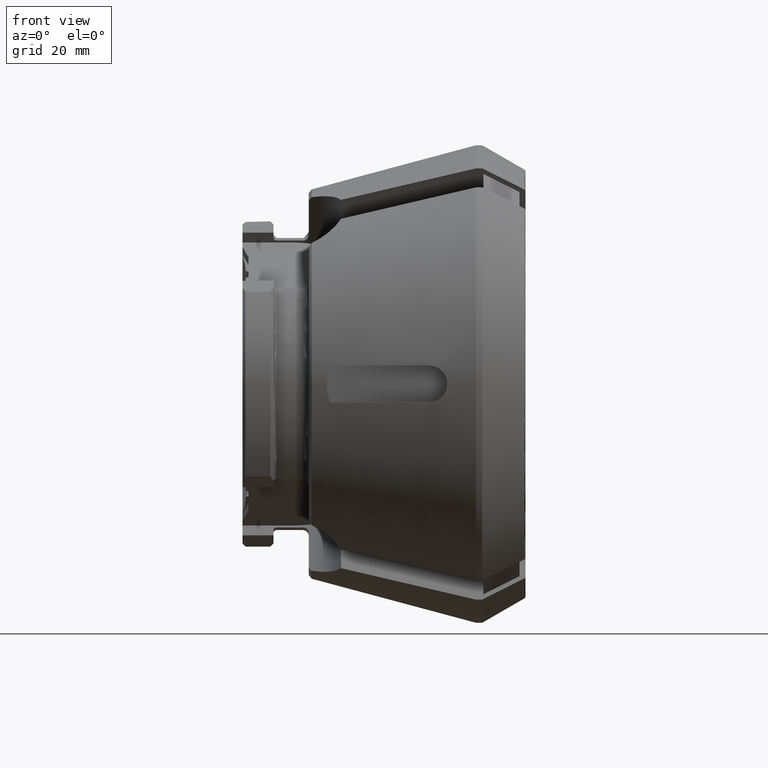
[diagram: clean part render]
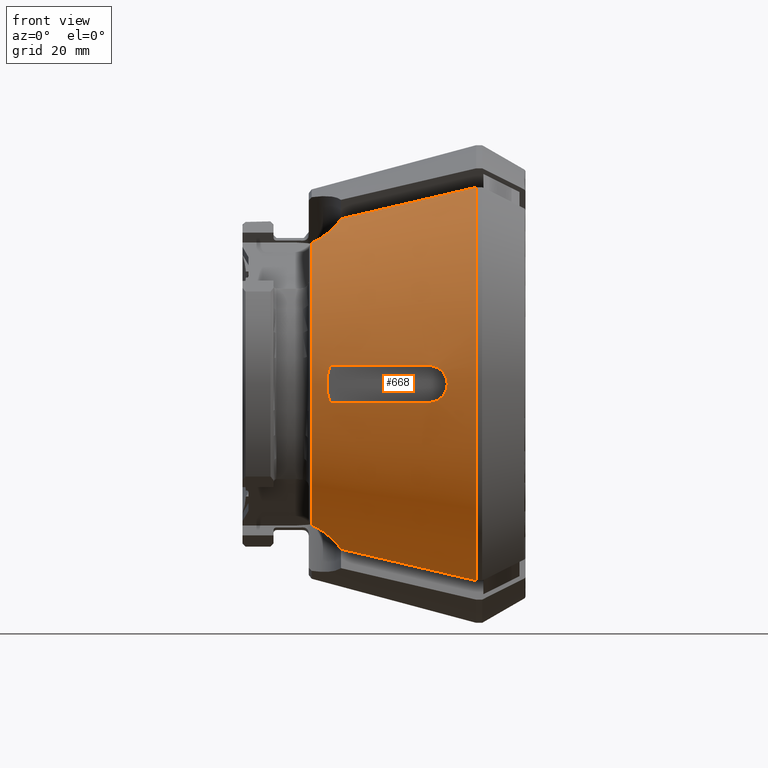
[diagram: same view with one face highlighted and labeled with its STEP entity id]
A machine part, front view. The second image highlights one B-rep face of the part: STEP entity #668.
In plain terms, the highlighted conical surface has half-angle 15 deg.
Its self-contained STEP definition (entity closure, byte-faithful):
#26 = CARTESIAN_POINT ( 'NONE',  ( -30.64625945521600100, -19.47183894521694100, -27.42621436991474600 ) ) ;
#67 = CARTESIAN_POINT ( 'NONE',  ( -30.76109235492472000, -19.67594187864342500, -27.24357143298756200 ) ) ;
#107 = CARTESIAN_POINT ( 'NONE',  ( -31.33200643643366200, -20.41502746269239000, -26.50108288042860800 ) ) ;
#207 = CARTESIAN_POINT ( 'NONE',  ( -30.88996370297099900, -19.87027436989981100, -27.05920589052581000 ) ) ;
#668 = ADVANCED_FACE ( 'NONE', ( #18580, #18807 ), #18393, .T. ) ;
#671 = CARTESIAN_POINT ( 'NONE',  ( -32.20732042301361300, -21.18007825766414600, -25.59208816440798300 ) ) ;
#730 = CARTESIAN_POINT ( 'NONE',  ( -31.17553888721092600, -20.24014629339060500, -26.68769743701243200 ) ) ;
#850 = CARTESIAN_POINT ( 'NONE',  ( -32.49323519577391300, -33.00000000000000000, 3.049999999999994000 ) ) ;
#861 = CARTESIAN_POINT ( 'NONE',  ( -31.83149369194227800, -20.90166397095048700, -25.95070031254957100 ) ) ;
#867 = CARTESIAN_POINT ( 'NONE',  ( -27.01234194574514500, -34.47486015279689300, 3.049999999999998500 ) ) ;
#908 = CARTESIAN_POINT ( 'NONE',  ( -21.53124165977687100, -35.94895027717363000, 3.050000000000000300 ) ) ;
#915 = CARTESIAN_POINT ( 'NONE',  ( -32.83398794700850900, -21.53532463159100300, -25.07050002879428900 ) ) ;
#1024 = CARTESIAN_POINT ( 'NONE',  ( -16.04999999999999700, -37.42251440520814000, 3.050000000000002500 ) ) ;
#1250 = CARTESIAN_POINT ( 'NONE',  ( -33.05483069336841600, -21.64374991605524600, -24.89843966363966700 ) ) ;
#1271 = CARTESIAN_POINT ( 'NONE',  ( -33.51005086725347600, -21.83615024832199600, -24.56692123775297900 ) ) ;
#1334 = CARTESIAN_POINT ( 'NONE',  ( -35.51703708685545300, -22.29768903052275100, 23.41087885680820000 ) ) ;
#1382 = CIRCLE ( 'NONE', #8744, 32.33042197296602200 ) ;
#1472 = CARTESIAN_POINT ( 'NONE',  ( -34.46843826279770400, -22.13945020353289600, -23.94674391474965000 ) ) ;
#1544 = CARTESIAN_POINT ( 'NONE',  ( -33.74454065312333700, -21.92041774440670900, -24.40720594919255900 ) ) ;
#1772 = CARTESIAN_POINT ( 'NONE',  ( -34.97801738506835500, -22.24087557305431800, -23.66444850089115400 ) ) ;
#1795 = CARTESIAN_POINT ( 'NONE',  ( -35.51703708685546000, -22.29768903052242700, -23.41087885680850900 ) ) ;
#2266 = B_SPLINE_CURVE_WITH_KNOTS ( 'NONE', 3,
 ( #12337, #11798, #11771, #11706, #11644, #11620, #11574, #11546, #11525, #11473 ),
 .UNSPECIFIED., .F., .F.,
 ( 4, 2, 2, 2, 4 ),
 ( 0.0009050040789083472500, 0.002674022955238913900, 0.004443041831569480800, 0.006212060707900046900, 0.007981079584230613800 ),
 .UNSPECIFIED. ) ;
#2285 = VERTEX_POINT ( 'NONE', #2609 ) ;
#2609 = CARTESIAN_POINT ( 'NONE',  ( -8.199999999999999300, -22.49031794029505700, 32.65437335096850500 ) ) ;
#3034 = B_SPLINE_CURVE_WITH_KNOTS ( 'NONE', 3,
 ( #1795, #1772, #1472, #1544, #1271, #1250, #915, #671, #861, #107, #730, #207, #67, #26 ),
 .UNSPECIFIED., .F., .F.,
 ( 4, 2, 2, 2, 2, 2, 4 ),
 ( 2.189187173582420600E-007, 0.001770253548386370900, 0.002655270863220890100, 0.003540288178055408900, 0.005310322807724455200, 0.006195340122558985200, 0.007080357437393515300 ),
 .UNSPECIFIED. ) ;
#3128 = B_SPLINE_CURVE_WITH_KNOTS ( 'NONE', 3,
 ( #18006, #18008, #17942, #17910 ),
 .UNSPECIFIED., .F., .F.,
 ( 4, 4 ),
 ( 2.070992766696240800E-007, 0.02324411865749188100 ),
 .UNSPECIFIED. ) ;
#3474 = CARTESIAN_POINT ( 'NONE',  ( -35.51703708685546000, -22.29768903052242700, -23.41087885680850900 ) ) ;
#3753 = B_SPLINE_CURVE_WITH_KNOTS ( 'NONE', 3,
 ( #12659, #12749, #12637, #12598 ),
 .UNSPECIFIED., .F., .F.,
 ( 4, 4 ),
 ( 0.005044362154641272200, 0.02828827371285648500 ),
 .UNSPECIFIED. ) ;
#4324 = CARTESIAN_POINT ( 'NONE',  ( -32.49323519577391300, -33.00000000000000000, -3.049999999999996300 ) ) ;
#4708 = EDGE_CURVE ( 'NONE', #17121, #10559, #11332, .T. ) ;
#5554 = EDGE_CURVE ( 'NONE', #10559, #15789, #15757, .T. ) ;
#6241 = EDGE_CURVE ( 'NONE', #15789, #9437, #8699, .T. ) ;
#6262 = EDGE_LOOP ( 'NONE', ( #9290, #9307, #9347, #9512, #13984, #9616 ) ) ;
#6618 = EDGE_CURVE ( 'NONE', #9437, #17121, #16649, .T. ) ;
#7266 = CARTESIAN_POINT ( 'NONE',  ( -16.04999999999999700, -37.42251440520814000, 3.050000000000002500 ) ) ;
#7603 = AXIS2_PLACEMENT_3D ( 'NONE', #15889, #15768, #15745 ) ;
#8198 = CARTESIAN_POINT ( 'NONE',  ( -30.64625945521600100, -19.47183894521694100, -27.42621436991474600 ) ) ;
#8298 = VERTEX_POINT ( 'NONE', #15085 ) ;
#8696 = VERTEX_POINT ( 'NONE', #8198 ) ;
#8699 = B_SPLINE_CURVE_WITH_KNOTS ( 'NONE', 3,
 ( #10585, #9953, #9774, #9724 ),
 .UNSPECIFIED., .F., .F.,
 ( 4, 4 ),
 ( 0.04002864274520581700, 0.05705622527655449000 ),
 .UNSPECIFIED. ) ;
#8744 = AXIS2_PLACEMENT_3D ( 'NONE', #13056, #12916, #13030 ) ;
#8887 = CARTESIAN_POINT ( 'NONE',  ( -16.04999999999999700, -37.42251440520814000, -3.050000000000002500 ) ) ;
#8989 = ORIENTED_EDGE ( 'NONE', *, *, #6618, .F. ) ;
#9059 = ORIENTED_EDGE ( 'NONE', *, *, #6241, .F. ) ;
#9186 = CARTESIAN_POINT ( 'NONE',  ( -16.04999999999999700, -37.42251440520814000, 3.050000000000002500 ) ) ;
#9191 = CARTESIAN_POINT ( 'NONE',  ( -15.85109358714608900, -37.47598793785101600, 3.050000000000005200 ) ) ;
#9200 = ORIENTED_EDGE ( 'NONE', *, *, #5554, .F. ) ;
#9236 = ORIENTED_EDGE ( 'NONE', *, *, #4708, .F. ) ;
#9290 = ORIENTED_EDGE ( 'NONE', *, *, #11558, .T. ) ;
#9307 = ORIENTED_EDGE ( 'NONE', *, *, #11762, .T. ) ;
#9315 = CARTESIAN_POINT ( 'NONE',  ( -15.65239271994725300, -37.53102136154688400, 3.030342351384944800 ) ) ;
#9347 = ORIENTED_EDGE ( 'NONE', *, *, #11849, .F. ) ;
#9396 = CARTESIAN_POINT ( 'NONE',  ( -15.26705232704572000, -37.64065139925080700, 2.954328901318140400 ) ) ;
#9437 = VERTEX_POINT ( 'NONE', #8887 ) ;
#9442 = CARTESIAN_POINT ( 'NONE',  ( -15.07963138961547300, -37.69543923861198200, 2.898208608037044200 ) ) ;
#9512 = ORIENTED_EDGE ( 'NONE', *, *, #11940, .F. ) ;
#9616 = ORIENTED_EDGE ( 'NONE', *, *, #12144, .T. ) ;
#9618 = CARTESIAN_POINT ( 'NONE',  ( -14.71522576811290300, -37.80448016594621000, 2.749473790675196000 ) ) ;
#9657 = CARTESIAN_POINT ( 'NONE',  ( -14.53832366002721300, -37.85873947760851600, 2.656330101017973600 ) ) ;
#9724 = CARTESIAN_POINT ( 'NONE',  ( -16.04999999999999700, -37.42251440520814000, -3.050000000000002500 ) ) ;
#9726 = CARTESIAN_POINT ( 'NONE',  ( -14.20938297108239800, -37.96162140918173100, 2.439955719939647800 ) ) ;
#9774 = CARTESIAN_POINT ( 'NONE',  ( -21.53124165967197000, -35.94895027720183100, -3.050000000000000300 ) ) ;
#9953 = CARTESIAN_POINT ( 'NONE',  ( -27.01234193365310800, -34.47486015605075900, -3.049999999999998500 ) ) ;
#10001 = CARTESIAN_POINT ( 'NONE',  ( -14.05538264058918300, -38.01082707859096400, 2.316075510924844800 ) ) ;
#10046 = CARTESIAN_POINT ( 'NONE',  ( -32.49323519577391300, -33.00000000000000000, -3.049999999999996300 ) ) ;
#10096 = CARTESIAN_POINT ( 'NONE',  ( -13.76933796489214900, -38.10366450937871000, 2.035014708641306000 ) ) ;
#10207 = CARTESIAN_POINT ( 'NONE',  ( -32.83015037337770500, -33.00000000000000000, -2.069078677385886200 ) ) ;
#10223 = CARTESIAN_POINT ( 'NONE',  ( -13.64123051339744200, -38.14601435781387600, 1.881577435203425400 ) ) ;
#10241 = CARTESIAN_POINT ( 'NONE',  ( -13.41613878126344300, -38.22125150025365800, 1.550896245623753400 ) ) ;
#10271 = CARTESIAN_POINT ( 'NONE',  ( -13.31806838751651500, -38.25451108830655800, 1.371143810942906400 ) ) ;
#10360 = CARTESIAN_POINT ( 'NONE',  ( -33.01664314701009300, -33.00000000000000700, -1.058844130645352700 ) ) ;
#10384 = CARTESIAN_POINT ( 'NONE',  ( -33.01887185831639500, -33.00000000000000000, 0.5105869075763204100 ) ) ;
#10422 = CARTESIAN_POINT ( 'NONE',  ( -32.97313718594320900, -32.99999999999999300, 1.029584388916042500 ) ) ;
#10444 = CARTESIAN_POINT ( 'NONE',  ( -32.79366989407221700, -33.00000000000000000, 2.058478033625852400 ) ) ;
#10470 = CARTESIAN_POINT ( 'NONE',  ( -32.66077825958237900, -33.00000000000000000, 2.562201958621554500 ) ) ;
#10559 = VERTEX_POINT ( 'NONE', #10630 ) ;
#10585 = CARTESIAN_POINT ( 'NONE',  ( -32.49323519577391300, -33.00000000000000000, -3.049999999999996300 ) ) ;
#10630 = CARTESIAN_POINT ( 'NONE',  ( -32.49323519577391300, -33.00000000000000000, 3.049999999999994000 ) ) ;
#10823 = CARTESIAN_POINT ( 'NONE',  ( -13.16081010980652400, -38.30821415520445300, 0.9980317950734213200 ) ) ;
#10851 = CARTESIAN_POINT ( 'NONE',  ( -32.49323519577391300, -33.00000000000000000, 3.049999999999994000 ) ) ;
#10906 = CIRCLE ( 'NONE', #7603, 39.64999999999999900 ) ;
#10972 = CARTESIAN_POINT ( 'NONE',  ( -13.10100623421315200, -38.32885536654342900, 0.8047654633759995200 ) ) ;
#11043 = CARTESIAN_POINT ( 'NONE',  ( -13.02003784713677900, -38.35686633981495000, 0.4044020696150516500 ) ) ;
#11332 = B_SPLINE_CURVE_WITH_KNOTS ( 'NONE', 3,
 ( #1024, #908, #867, #850 ),
 .UNSPECIFIED., .F., .F.,
 ( 4, 4 ),
 ( 0.02358749548919750500, 0.04061507935179557700 ),
 .UNSPECIFIED. ) ;
#11345 = CARTESIAN_POINT ( 'NONE',  ( -12.99971017721341800, -38.36394457556298200, 0.1987360611737635000 ) ) ;
#11473 = CARTESIAN_POINT ( 'NONE',  ( -35.51703708685545300, -22.29768903052275100, 23.41087885680820000 ) ) ;
#11525 = CARTESIAN_POINT ( 'NONE',  ( -34.97839897250649700, -22.24091579292345200, 23.66426899169933800 ) ) ;
#11546 = CARTESIAN_POINT ( 'NONE',  ( -34.46802647819751500, -22.13947331871266000, 23.94688880192263600 ) ) ;
#11558 = EDGE_CURVE ( 'NONE', #17695, #12561, #1382, .T. ) ;
#11574 = CARTESIAN_POINT ( 'NONE',  ( -33.49965845567799500, -21.84617448351578500, 24.56308991848194300 ) ) ;
#11595 = CARTESIAN_POINT ( 'NONE',  ( -13.00029616805715100, -38.36374097242703800, -0.2075344849401395100 ) ) ;
#11620 = CARTESIAN_POINT ( 'NONE',  ( -33.03925390477495900, -21.65194600010270100, 24.89947091929407500 ) ) ;
#11644 = CARTESIAN_POINT ( 'NONE',  ( -32.20599957214982800, -21.17906809935384200, 25.59337069363705900 ) ) ;
#11706 = CARTESIAN_POINT ( 'NONE',  ( -31.82824473895576400, -20.89955997051999900, 25.95360851684723600 ) ) ;
#11750 = CARTESIAN_POINT ( 'NONE',  ( -13.02102634971380400, -38.35652274018014700, -0.4119948802257871700 ) ) ;
#11762 = EDGE_CURVE ( 'NONE', #12561, #8696, #3034, .T. ) ;
#11771 = CARTESIAN_POINT ( 'NONE',  ( -31.15685056568565500, -20.24329763974847700, 26.69477009310188700 ) ) ;
#11798 = CARTESIAN_POINT ( 'NONE',  ( -30.87461349045957000, -19.87771329456500500, 27.06301487080012800 ) ) ;
#11837 = CARTESIAN_POINT ( 'NONE',  ( -13.10326994811285500, -38.32807392916578900, -0.8131439950989792800 ) ) ;
#11849 = EDGE_CURVE ( 'NONE', #15474, #8696, #3128, .T. ) ;
#11940 = EDGE_CURVE ( 'NONE', #2285, #15474, #10906, .T. ) ;
#11954 = DIRECTION ( 'NONE',  ( 0.0000000000000000000, 0.0000000000000000000, -1.000000000000000000 ) ) ;
#12018 = CARTESIAN_POINT ( 'NONE',  ( -8.199999999999999300, 0.0000000000000000000, 0.0000000000000000000 ) ) ;
#12076 = CARTESIAN_POINT ( 'NONE',  ( -13.16362686235515700, -38.30724671785781500, -1.005943939466857000 ) ) ;
#12079 = CARTESIAN_POINT ( 'NONE',  ( -13.32098731959559700, -38.25352001773033800, -1.376794425199278500 ) ) ;
#12086 = EDGE_CURVE ( 'NONE', #8298, #2285, #3753, .T. ) ;
#12143 = CARTESIAN_POINT ( 'NONE',  ( -13.41951490714696500, -38.22011220696456500, -1.556643996688583400 ) ) ;
#12144 = EDGE_CURVE ( 'NONE', #8298, #17695, #2266, .T. ) ;
#12233 = CARTESIAN_POINT ( 'NONE',  ( -13.64560007150199900, -38.14456502542073200, -1.887181321438786300 ) ) ;
#12337 = CARTESIAN_POINT ( 'NONE',  ( -30.64625945521599300, -19.47183894521731100, 27.42621436991445400 ) ) ;
#12355 = CARTESIAN_POINT ( 'NONE',  ( -13.77318708967107800, -38.10240574867156500, -2.039134300616598500 ) ) ;
#12423 = CARTESIAN_POINT ( 'NONE',  ( -14.05686124890316600, -38.01035687335023300, -2.317184421548650300 ) ) ;
#12454 = DIRECTION ( 'NONE',  ( 1.000000000000000000, -0.0000000000000000000, -0.0000000000000000000 ) ) ;
#12561 = VERTEX_POINT ( 'NONE', #3474 ) ;
#12598 = CARTESIAN_POINT ( 'NONE',  ( -8.199999999999999300, -22.49031794029505700, 32.65437335096850500 ) ) ;
#12599 = CARTESIAN_POINT ( 'NONE',  ( -14.21378561598581700, -37.96022599974567400, -2.443253826839042500 ) ) ;
#12637 = CARTESIAN_POINT ( 'NONE',  ( -15.68237320874481200, -21.48469146624329400, 30.91257720447451600 ) ) ;
#12659 = CARTESIAN_POINT ( 'NONE',  ( -30.64625945521599300, -19.47183894521731100, 27.42621436991445400 ) ) ;
#12749 = CARTESIAN_POINT ( 'NONE',  ( -23.16451154982159700, -20.47862784269332400, 29.17002389283914400 ) ) ;
#12840 = CARTESIAN_POINT ( 'NONE',  ( -14.54275002357142700, -37.85737396151779400, -2.658828696057773800 ) ) ;
#12916 = DIRECTION ( 'NONE',  ( 1.000000000000000000, -0.0000000000000000000, -0.0000000000000000000 ) ) ;
#12935 = CARTESIAN_POINT ( 'NONE',  ( -14.71628432766654400, -37.80415573342485700, -2.750027743568128200 ) ) ;
#13030 = DIRECTION ( 'NONE',  ( 0.0000000000000000000, 0.0000000000000000000, -1.000000000000000000 ) ) ;
#13056 = CARTESIAN_POINT ( 'NONE',  ( -35.51703708685546000, 0.0000000000000000000, 0.0000000000000000000 ) ) ;
#13080 = EDGE_LOOP ( 'NONE', ( #8989, #9059, #9200, #9236 ) ) ;
#13153 = CARTESIAN_POINT ( 'NONE',  ( -15.08181713607793000, -37.69479294739880300, -2.898977755525204500 ) ) ;
#13334 = CARTESIAN_POINT ( 'NONE',  ( -15.27197146964803500, -37.63923099823841800, -2.955574339075695000 ) ) ;
#13451 = CARTESIAN_POINT ( 'NONE',  ( -15.65582389507267900, -37.53006654164892800, -3.030738072837817900 ) ) ;
#13984 = ORIENTED_EDGE ( 'NONE', *, *, #12086, .F. ) ;
#14078 = CARTESIAN_POINT ( 'NONE',  ( -16.04999999999999700, -37.42251440520814000, -3.050000000000002500 ) ) ;
#15085 = CARTESIAN_POINT ( 'NONE',  ( -30.64625945521599300, -19.47183894521731100, 27.42621436991445400 ) ) ;
#15305 = CARTESIAN_POINT ( 'NONE',  ( -15.85112403435943300, -37.47597975249372100, -3.050000000000000300 ) ) ;
#15474 = VERTEX_POINT ( 'NONE', #16570 ) ;
#15745 = DIRECTION ( 'NONE',  ( 0.0000000000000000000, 0.0000000000000000000, -1.000000000000000000 ) ) ;
#15757 = B_SPLINE_CURVE_WITH_KNOTS ( 'NONE', 3,
 ( #10851, #10470, #10444, #10422, #10384, #10360, #10207, #10046 ),
 .UNSPECIFIED., .F., .F.,
 ( 4, 2, 2, 4 ),
 ( 0.01651479756307556700, 0.01805969532215115700, 0.01960459308122674800, 0.02269438859937792900 ),
 .UNSPECIFIED. ) ;
#15768 = DIRECTION ( 'NONE',  ( 1.000000000000000000, -0.0000000000000000000, -0.0000000000000000000 ) ) ;
#15789 = VERTEX_POINT ( 'NONE', #4324 ) ;
#15889 = CARTESIAN_POINT ( 'NONE',  ( -8.199999999999999300, 0.0000000000000000000, 0.0000000000000000000 ) ) ;
#16570 = CARTESIAN_POINT ( 'NONE',  ( -8.199999999999999300, -22.49031794029460200, -32.65437335096881100 ) ) ;
#16649 = B_SPLINE_CURVE_WITH_KNOTS ( 'NONE', 3,
 ( #14078, #15305, #13451, #13334, #13153, #12935, #12840, #12599, #12423, #12355, #12233, #12143, #12079, #12076, #11837, #11750, #11595, #11345, #11043, #10972, #10823, #10271, #10241, #10223, #10096, #10001, #9726, #9657, #9618, #9442, #9396, #9315, #9191, #9186 ),
 .UNSPECIFIED., .F., .F.,
 ( 4, 2, 2, 2, 2, 2, 2, 2, 2, 2, 2, 2, 2, 2, 2, 2, 4 ),
 ( 2.041584157175783500E-007, 0.0006092408927331030900, 0.001218277627050493400, 0.001827314361367883800, 0.002436351095685274200, 0.003045387830002664300, 0.003654424564320055000, 0.004263461298637444300, 0.004872498032954836200, 0.005481534767272225500, 0.006090571501589614800, 0.006699608235907005000, 0.007308644970224395200, 0.007917681704541785400, 0.008526718438859175500, 0.009135755173176565700, 0.009744791907493959400 ),
 .UNSPECIFIED. ) ;
#16821 = AXIS2_PLACEMENT_3D ( 'NONE', #12018, #12454, #11954 ) ;
#17121 = VERTEX_POINT ( 'NONE', #7266 ) ;
#17695 = VERTEX_POINT ( 'NONE', #1334 ) ;
#17910 = CARTESIAN_POINT ( 'NONE',  ( -30.64625945521600100, -19.47183894521694100, -27.42621436991474600 ) ) ;
#17942 = CARTESIAN_POINT ( 'NONE',  ( -23.16451154982159700, -20.47862784269291900, -29.17002389283942800 ) ) ;
#18006 = CARTESIAN_POINT ( 'NONE',  ( -8.199999999999999300, -22.49031794029460200, -32.65437335096881100 ) ) ;
#18008 = CARTESIAN_POINT ( 'NONE',  ( -15.68237320874481200, -21.48469146624286800, -30.91257720447481500 ) ) ;
#18393 = CONICAL_SURFACE ( 'NONE', #16821, 39.64999999999999900, 0.2617993877991504600 ) ;
#18580 = FACE_BOUND ( 'NONE', #13080, .T. ) ;
#18807 = FACE_OUTER_BOUND ( 'NONE', #6262, .T. ) ;